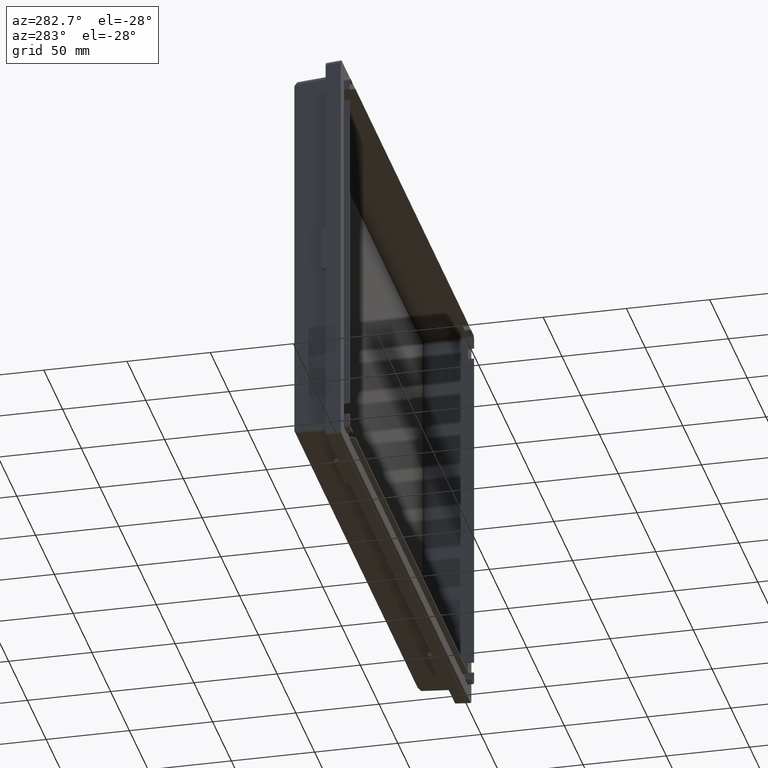
[diagram: clean part render]
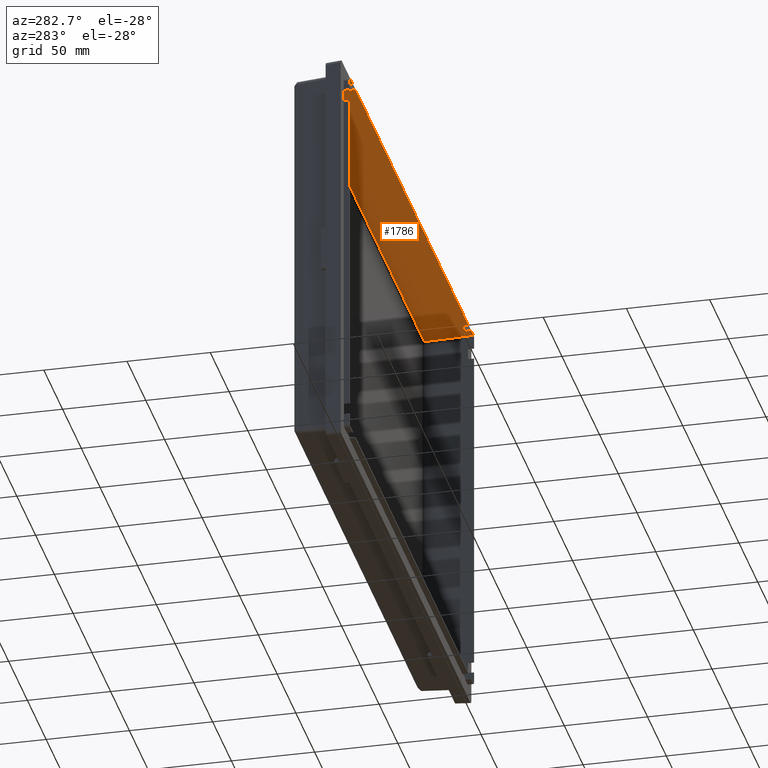
[diagram: same view with one face highlighted and labeled with its STEP entity id]
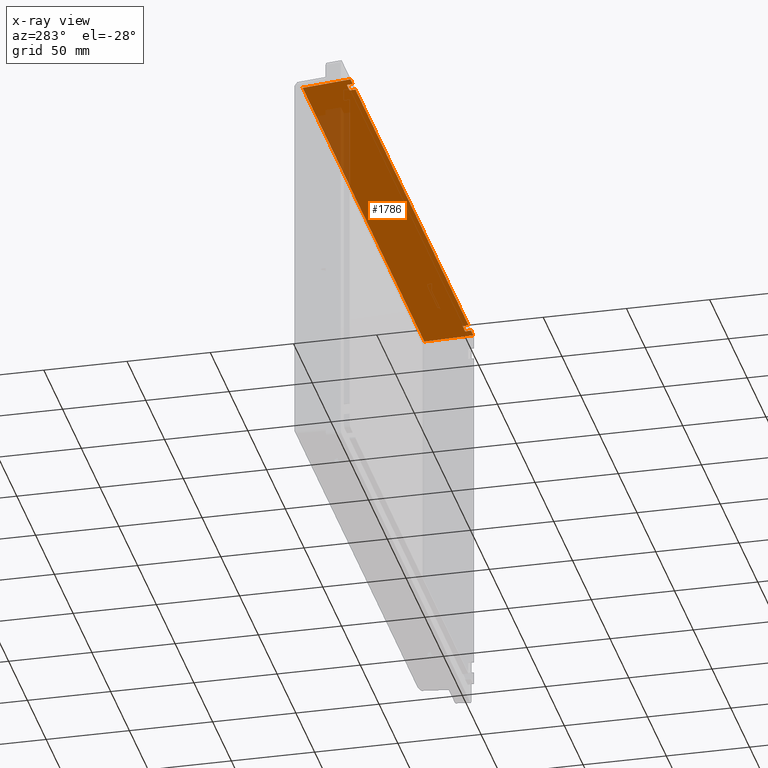
[diagram: x-ray of the same camera — body ghosted, the highlighted face saturated]
A machine part, auxiliary view. The second image highlights one B-rep face of the part: STEP entity #1786.
The next image is the same camera in x-ray: the body ghosted, the highlighted face saturated — about 10% of this face is hidden behind the body in this view.
In plain terms, the highlighted planar face has unit normal (0, 0.0523, 0.9986).
Its self-contained STEP definition (entity closure, byte-faithful):
#25 = VECTOR ( 'NONE', #3258, 1000.000000000000100 ) ;
#47 = CARTESIAN_POINT ( 'NONE',  ( -150.6694559627000000, 0.0000000000000000000, 115.1127402264999900 ) ) ;
#55 = DIRECTION ( 'NONE',  ( 0.0000000000000000000, 0.9986295347545741700, -0.05233595624293864400 ) ) ;
#56 = CARTESIAN_POINT ( 'NONE',  ( -157.6694559627000000, -3.500000000000000000, 115.2961674540000000 ) ) ;
#85 = CARTESIAN_POINT ( 'NONE',  ( -163.7982231519000000, -3.500000000000000000, 115.2961674540000000 ) ) ;
#86 = DIRECTION ( 'NONE',  ( 1.000000000000000000, 0.0000000000000000000, 0.0000000000000000000 ) ) ;
#90 = DIRECTION ( 'NONE',  ( 0.0000000000000000000, 0.9986295347545741700, -0.05233595624293864400 ) ) ;
#92 = CARTESIAN_POINT ( 'NONE',  ( 150.6694559627000000, -3.500000000000000000, 115.2961674540000000 ) ) ;
#102 = VECTOR ( 'NONE', #55, 1000.000000000000100 ) ;
#111 = VECTOR ( 'NONE', #90, 1000.000000000000100 ) ;
#113 = VECTOR ( 'NONE', #86, 1000.000000000000000 ) ;
#154 = AXIS2_PLACEMENT_3D ( 'NONE', #3319, #3318, #3317 ) ;
#560 = CARTESIAN_POINT ( 'NONE',  ( 157.6694559627000000, -3.500000000000000000, 115.2961674540000000 ) ) ;
#563 = CARTESIAN_POINT ( 'NONE',  ( 157.6694559627000000, 0.0000000000000000000, 115.1127402264999900 ) ) ;
#574 = CARTESIAN_POINT ( 'NONE',  ( 163.7982231518417400, -3.500000000000003100, 115.2961674539929100 ) ) ;
#610 = CARTESIAN_POINT ( 'NONE',  ( -162.2742833357999900, 25.57850393436000000, 113.7722276379000000 ) ) ;
#614 = CARTESIAN_POINT ( 'NONE',  ( 162.2742833357999900, 25.57850393436000000, 113.7722276379000000 ) ) ;
#652 = CARTESIAN_POINT ( 'NONE',  ( 150.6694559627000000, -3.500000000000000000, 115.2961674540000000 ) ) ;
#812 = ORIENTED_EDGE ( 'NONE', *, *, #1631, .F. ) ;
#813 = ORIENTED_EDGE ( 'NONE', *, *, #1665, .T. ) ;
#814 = ORIENTED_EDGE ( 'NONE', *, *, #1582, .F. ) ;
#815 = ORIENTED_EDGE ( 'NONE', *, *, #1637, .T. ) ;
#816 = ORIENTED_EDGE ( 'NONE', *, *, #1635, .F. ) ;
#817 = ORIENTED_EDGE ( 'NONE', *, *, #1636, .F. ) ;
#818 = ORIENTED_EDGE ( 'NONE', *, *, #1639, .T. ) ;
#819 = ORIENTED_EDGE ( 'NONE', *, *, #4197, .F. ) ;
#820 = ORIENTED_EDGE ( 'NONE', *, *, #1547, .F. ) ;
#821 = ORIENTED_EDGE ( 'NONE', *, *, #1577, .T. ) ;
#822 = ORIENTED_EDGE ( 'NONE', *, *, #1640, .F. ) ;
#823 = ORIENTED_EDGE ( 'NONE', *, *, #1642, .T. ) ;
#1366 = VERTEX_POINT ( 'NONE', #3495 ) ;
#1367 = VERTEX_POINT ( 'NONE', #3494 ) ;
#1370 = VERTEX_POINT ( 'NONE', #3469 ) ;
#1371 = VERTEX_POINT ( 'NONE', #3472 ) ;
#1375 = VERTEX_POINT ( 'NONE', #3489 ) ;
#1378 = VERTEX_POINT ( 'NONE', #3486 ) ;
#1468 = LINE ( 'NONE', #2934, #2589 ) ;
#1547 = EDGE_CURVE ( 'NONE', #1992, #2039, #2259, .T. ) ;
#1577 = EDGE_CURVE ( 'NONE', #2079, #2039, #2285, .T. ) ;
#1582 = EDGE_CURVE ( 'NONE', #1375, #2117, #2290, .T. ) ;
#1631 = EDGE_CURVE ( 'NONE', #2117, #1366, #2334, .T. ) ;
#1635 = EDGE_CURVE ( 'NONE', #1370, #1378, #2337, .T. ) ;
#1636 = EDGE_CURVE ( 'NONE', #1367, #1370, #2338, .T. ) ;
#1637 = EDGE_CURVE ( 'NONE', #1371, #1378, #2339, .T. ) ;
#1639 = EDGE_CURVE ( 'NONE', #1367, #2075, #2341, .T. ) ;
#1640 = EDGE_CURVE ( 'NONE', #1366, #1995, #2342, .T. ) ;
#1642 = EDGE_CURVE ( 'NONE', #1992, #1995, #2344, .T. ) ;
#1665 = EDGE_CURVE ( 'NONE', #1375, #1371, #2366, .T. ) ;
#1786 = ADVANCED_FACE ( 'NONE', ( #2416 ), #3320, .F. ) ;
#1992 = VERTEX_POINT ( 'NONE', #560 ) ;
#1995 = VERTEX_POINT ( 'NONE', #563 ) ;
#2039 = VERTEX_POINT ( 'NONE', #574 ) ;
#2075 = VERTEX_POINT ( 'NONE', #610 ) ;
#2079 = VERTEX_POINT ( 'NONE', #614 ) ;
#2117 = VERTEX_POINT ( 'NONE', #652 ) ;
#2194 = EDGE_LOOP ( 'NONE', ( #812, #814, #813, #815, #816, #817, #818, #819, #821, #820, #823, #822 ) ) ;
#2259 = LINE ( 'NONE', #3501, #4069 ) ;
#2285 = LINE ( 'NONE', #3598, #3460 ) ;
#2290 = LINE ( 'NONE', #3586, #3457 ) ;
#2334 = LINE ( 'NONE', #92, #111 ) ;
#2337 = LINE ( 'NONE', #56, #102 ) ;
#2338 = LINE ( 'NONE', #85, #113 ) ;
#2339 = LINE ( 'NONE', #47, #3432 ) ;
#2341 = LINE ( 'NONE', #3385, #3434 ) ;
#2342 = LINE ( 'NONE', #3383, #3440 ) ;
#2344 = LINE ( 'NONE', #3379, #3443 ) ;
#2366 = LINE ( 'NONE', #3261, #25 ) ;
#2416 = FACE_OUTER_BOUND ( 'NONE', #2194, .T. ) ;
#2589 = VECTOR ( 'NONE', #2935, 1000.000000000000000 ) ;
#2934 = CARTESIAN_POINT ( 'NONE',  ( 162.2742833357000100, 25.57850393437000100, 113.7722276379000000 ) ) ;
#2935 = DIRECTION ( 'NONE',  ( -1.000000000000000000, 0.0000000000000000000, 0.0000000000000000000 ) ) ;
#3258 = DIRECTION ( 'NONE',  ( 0.0000000000000000000, 0.9986295347545741700, -0.05233595624293864400 ) ) ;
#3261 = CARTESIAN_POINT ( 'NONE',  ( -150.6694559627000000, -3.500000000000000000, 115.2961674540000000 ) ) ;
#3317 = DIRECTION ( 'NONE',  ( 0.0000000000000000000, -0.9986295347545742800, 0.05233595624293865100 ) ) ;
#3318 = DIRECTION ( 'NONE',  ( 0.0000000000000000000, 0.05233595624293865100, 0.9986295347545742800 ) ) ;
#3319 = CARTESIAN_POINT ( 'NONE',  ( -235.0000000000000300, 57.48650806633000300, 112.0999999999999900 ) ) ;
#3320 = PLANE ( 'NONE',  #154 ) ;
#3378 = DIRECTION ( 'NONE',  ( 0.0000000000000000000, 0.9986295347545741700, -0.05233595624293864400 ) ) ;
#3379 = CARTESIAN_POINT ( 'NONE',  ( 157.6694559627000000, -3.500000000000000000, 115.2961674540000000 ) ) ;
#3382 = DIRECTION ( 'NONE',  ( 1.000000000000000000, 0.0000000000000000000, 0.0000000000000000000 ) ) ;
#3383 = CARTESIAN_POINT ( 'NONE',  ( 150.6694559627000000, 0.0000000000000000000, 115.1127402264999900 ) ) ;
#3384 = DIRECTION ( 'NONE',  ( 0.05226442768871195800, 0.9972646886342374500, -0.05226442768871195800 ) ) ;
#3385 = CARTESIAN_POINT ( 'NONE',  ( -163.7982231519000000, -3.500000000000000000, 115.2961674540000000 ) ) ;
#3388 = DIRECTION ( 'NONE',  ( -1.000000000000000000, 0.0000000000000000000, 0.0000000000000000000 ) ) ;
#3432 = VECTOR ( 'NONE', #3388, 1000.000000000000000 ) ;
#3434 = VECTOR ( 'NONE', #3384, 1000.000000000000100 ) ;
#3440 = VECTOR ( 'NONE', #3382, 1000.000000000000000 ) ;
#3443 = VECTOR ( 'NONE', #3378, 1000.000000000000100 ) ;
#3457 = VECTOR ( 'NONE', #3585, 1000.000000000000000 ) ;
#3460 = VECTOR ( 'NONE', #3597, 1000.000000000000000 ) ;
#3469 = CARTESIAN_POINT ( 'NONE',  ( -157.6694559627000000, -3.500000000000000000, 115.2961674540000000 ) ) ;
#3472 = CARTESIAN_POINT ( 'NONE',  ( -150.6694559627000000, 0.0000000000000000000, 115.1127402264999900 ) ) ;
#3474 = DIRECTION ( 'NONE',  ( 1.000000000000000000, 0.0000000000000000000, 0.0000000000000000000 ) ) ;
#3486 = CARTESIAN_POINT ( 'NONE',  ( -157.6694559627000000, 0.0000000000000000000, 115.1127402264999900 ) ) ;
#3489 = CARTESIAN_POINT ( 'NONE',  ( -150.6694559627000000, -3.500000000000000000, 115.2961674540000000 ) ) ;
#3494 = CARTESIAN_POINT ( 'NONE',  ( -163.7982231518758200, -3.500000000000001300, 115.2961674539917100 ) ) ;
#3495 = CARTESIAN_POINT ( 'NONE',  ( 150.6694559627000000, 0.0000000000000000000, 115.1127402264999900 ) ) ;
#3501 = CARTESIAN_POINT ( 'NONE',  ( 157.6694559627000000, -3.500000000000000000, 115.2961674540000000 ) ) ;
#3585 = DIRECTION ( 'NONE',  ( 1.000000000000000000, 0.0000000000000000000, 0.0000000000000000000 ) ) ;
#3586 = CARTESIAN_POINT ( 'NONE',  ( -150.6694559627000000, -3.500000000000000000, 115.2961674540000000 ) ) ;
#3597 = DIRECTION ( 'NONE',  ( 0.05226442768971920800, -0.9972646886341849400, 0.05226442768870921000 ) ) ;
#3598 = CARTESIAN_POINT ( 'NONE',  ( 162.2742833357000100, 25.57850393437000100, 113.7722276379000000 ) ) ;
#4069 = VECTOR ( 'NONE', #3474, 1000.000000000000000 ) ;
#4197 = EDGE_CURVE ( 'NONE', #2079, #2075, #1468, .T. ) ;